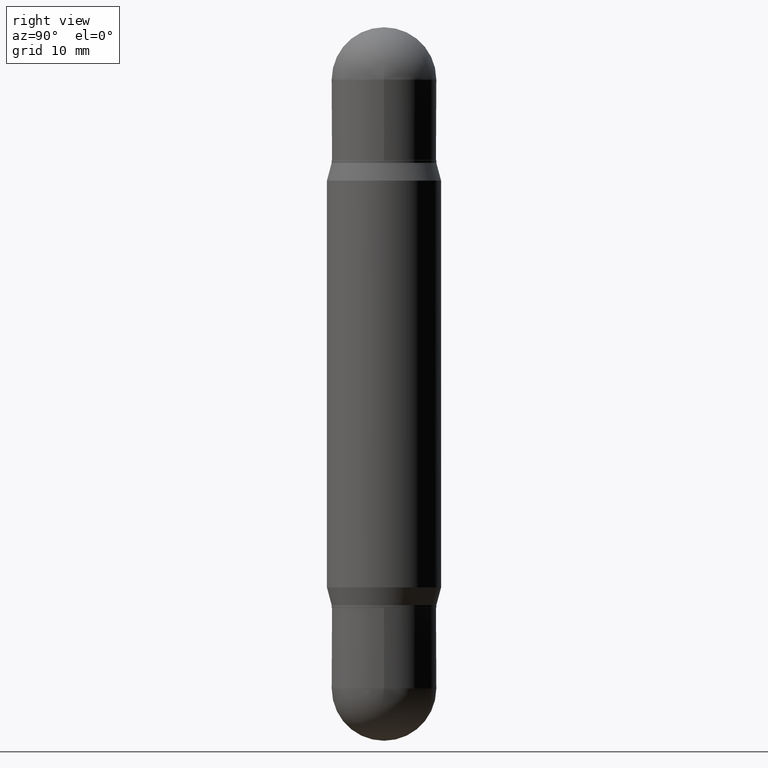
[diagram: clean part render]
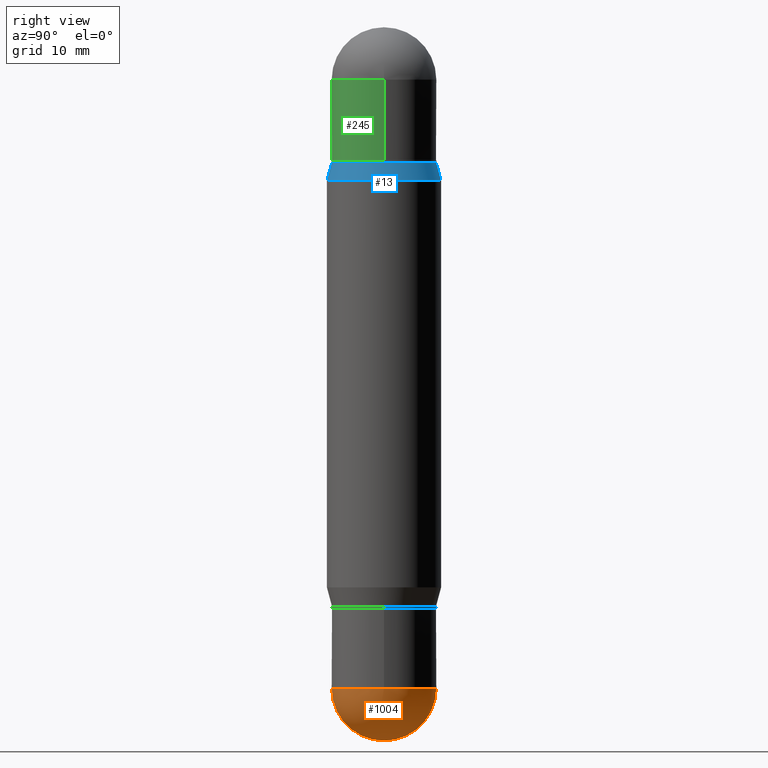
[diagram: same view with three faces highlighted in distinct colors, each labeled with its STEP entity id]
A machine part, right view with three faces highlighted in distinct colors.
Their STEP definitions:

[orange] entity #1004 — the highlighted spherical surface has radius 5.5004 mm.
#30 = DIRECTION ( 'NONE',  ( -2.445468806185136597E-29, 3.491481338843145583E-15, 1.000000000000000000 ) ) ;
#40 = EDGE_CURVE ( 'NONE', #493, #467, #559, .T. ) ;
#60 = DIRECTION ( 'NONE',  ( 1.000000000000000000, -6.982962677686270655E-15, 0.000000000000000000 ) ) ;
#101 = FACE_OUTER_BOUND ( 'NONE', #1044, .T. ) ;
#111 = AXIS2_PLACEMENT_3D ( 'NONE', #632, #30, #1063 ) ;
#139 = EDGE_CURVE ( 'NONE', #307, #1036, #273, .T. ) ;
#154 = DIRECTION ( 'NONE',  ( 1.000000000000000000, -6.982962677686265922E-15, 4.883557194083112340E-29 ) ) ;
#184 = CARTESIAN_POINT ( 'NONE',  ( 7.252127585071107106E-29, -1.026504139929409708E-14, -2.952799999999999869 ) ) ;
#204 = AXIS2_PLACEMENT_3D ( 'NONE', #965, #289, #977 ) ;
#229 = DIRECTION ( 'NONE',  ( -1.000000000000000000, 7.105427357601001070E-15, -4.926315508542082329E-29 ) ) ;
#273 = CIRCLE ( 'NONE', #993, 0.2165500000000003811 ) ;
#289 = DIRECTION ( 'NONE',  ( -1.000000000000000000, 6.982962677686265922E-15, -4.883557194083112340E-29 ) ) ;
#291 = ORIENTED_EDGE ( 'NONE', *, *, #610, .F. ) ;
#307 = VERTEX_POINT ( 'NONE', #184 ) ;
#432 = AXIS2_PLACEMENT_3D ( 'NONE', #825, #154, #573 ) ;
#459 = CARTESIAN_POINT ( 'NONE',  ( 0.2165500000000001035, -1.048151426624058891E-14, -2.736249999999999627 ) ) ;
#467 = VERTEX_POINT ( 'NONE', #895 ) ;
#484 = DIRECTION ( 'NONE',  ( -7.105427357601001070E-15, -1.000000000000000000, 0.000000000000000000 ) ) ;
#493 = VERTEX_POINT ( 'NONE', #459 ) ;
#524 = AXIS2_PLACEMENT_3D ( 'NONE', #738, #664, #60 ) ;
#559 = CIRCLE ( 'NONE', #111, 0.2165500000000001035 ) ;
#570 = EDGE_CURVE ( 'NONE', #307, #467, #673, .T. ) ;
#573 = DIRECTION ( 'NONE',  ( 6.982962677686265922E-15, 1.000000000000000000, 0.000000000000000000 ) ) ;
#582 = ORIENTED_EDGE ( 'NONE', *, *, #570, .T. ) ;
#610 = EDGE_CURVE ( 'NONE', #1036, #493, #1014, .T. ) ;
#612 = SPHERICAL_SURFACE ( 'NONE', #204, 0.2165500000000003811 ) ;
#632 = CARTESIAN_POINT ( 'NONE',  ( 6.691414020924079206E-29, -9.553565813409555750E-15, -2.736249999999999627 ) ) ;
#664 = DIRECTION ( 'NONE',  ( -2.445468806185136597E-29, 3.491481338843145583E-15, 1.000000000000000000 ) ) ;
#673 = CIRCLE ( 'NONE', #432, 0.2165500000000003811 ) ;
#677 = CARTESIAN_POINT ( 'NONE',  ( -1.538680294288431227E-15, -0.2165500000000098180, -2.736249999999999183 ) ) ;
#738 = CARTESIAN_POINT ( 'NONE',  ( 6.691414020924079206E-29, -9.553565813409555750E-15, -2.736249999999999627 ) ) ;
#825 = CARTESIAN_POINT ( 'NONE',  ( 6.713302002095624841E-29, -9.522220978585379288E-15, -2.736249999999999627 ) ) ;
#830 = CARTESIAN_POINT ( 'NONE',  ( 6.713302002095624841E-29, -9.522220978585379288E-15, -2.736249999999999627 ) ) ;
#895 = CARTESIAN_POINT ( 'NONE',  ( 1.512160567853029651E-15, 0.2165499999999906944, -2.736250000000000071 ) ) ;
#952 = ORIENTED_EDGE ( 'NONE', *, *, #40, .F. ) ;
#965 = CARTESIAN_POINT ( 'NONE',  ( 6.713302002095624841E-29, -9.522220978585379288E-15, -2.736249999999999627 ) ) ;
#977 = DIRECTION ( 'NONE',  ( 6.982962677686265922E-15, 1.000000000000000000, -2.523064413451173785E-15 ) ) ;
#993 = AXIS2_PLACEMENT_3D ( 'NONE', #830, #229, #484 ) ;
#1004 = ADVANCED_FACE ( 'NONE', ( #101 ), #612, .T. ) ;
#1014 = CIRCLE ( 'NONE', #524, 0.2165500000000001035 ) ;
#1036 = VERTEX_POINT ( 'NONE', #677 ) ;
#1044 = EDGE_LOOP ( 'NONE', ( #1097, #582, #952, #291 ) ) ;
#1063 = DIRECTION ( 'NONE',  ( 1.000000000000000000, -6.982962677686270655E-15, 0.000000000000000000 ) ) ;
#1097 = ORIENTED_EDGE ( 'NONE', *, *, #139, .F. ) ;

[blue] entity #13 — the highlighted conical surface has half-angle 15 deg.
#13 = ADVANCED_FACE ( 'NONE', ( #456 ), #957, .T. ) ;
#54 = CARTESIAN_POINT ( 'NONE',  ( 1.620449627073692271E-15, 0.2361999999999977728, -0.6345347983687291693 ) ) ;
#68 = DIRECTION ( 'NONE',  ( -1.807323732225338422E-15, -0.2588190451025260685, -0.9659258262890667579 ) ) ;
#114 = AXIS2_PLACEMENT_3D ( 'NONE', #1018, #344, #695 ) ;
#167 = EDGE_CURVE ( 'NONE', #599, #576, #1082, .T. ) ;
#223 = DIRECTION ( 'NONE',  ( -6.982962677686265133E-15, -1.000000000000000000, 3.469213568495369673E-15 ) ) ;
#231 = DIRECTION ( 'NONE',  ( 2.443443055007287713E-29, 3.476713475992551705E-15, 1.000000000000000000 ) ) ;
#263 = ORIENTED_EDGE ( 'NONE', *, *, #815, .T. ) ;
#297 = AXIS2_PLACEMENT_3D ( 'NONE', #323, #231, #223 ) ;
#302 = CARTESIAN_POINT ( 'NONE',  ( 5.843738410355426328E-29, -1.977217898530302232E-15, -0.5612000000000005873 ) ) ;
#323 = CARTESIAN_POINT ( 'NONE',  ( 5.843738410355426328E-29, -1.977217898530302232E-15, -0.5612000000000005873 ) ) ;
#344 = DIRECTION ( 'NONE',  ( 2.443443055007287713E-29, 3.476713475992551705E-15, 1.000000000000000000 ) ) ;
#395 = DIRECTION ( 'NONE',  ( 1.775627540710973583E-15, 0.2588190451025194627, -0.9659258262890685343 ) ) ;
#402 = CARTESIAN_POINT ( 'NONE',  ( 1.485640841417483516E-15, 0.2165499999999980218, -0.5612000000000013644 ) ) ;
#446 = DIRECTION ( 'NONE',  ( -2.443443055007287713E-29, -3.476713475992551705E-15, -1.000000000000000000 ) ) ;
#456 = FACE_OUTER_BOUND ( 'NONE', #478, .T. ) ;
#478 = EDGE_LOOP ( 'NONE', ( #557, #638, #597, #263 ) ) ;
#502 = VECTOR ( 'NONE', #395, 39.37007874015748143 ) ;
#557 = ORIENTED_EDGE ( 'NONE', *, *, #167, .F. ) ;
#576 = VERTEX_POINT ( 'NONE', #54 ) ;
#593 = VERTEX_POINT ( 'NONE', #1098 ) ;
#597 = ORIENTED_EDGE ( 'NONE', *, *, #808, .T. ) ;
#599 = VERTEX_POINT ( 'NONE', #743 ) ;
#600 = CIRCLE ( 'NONE', #114, 0.2361999999999999933 ) ;
#634 = EDGE_CURVE ( 'NONE', #896, #599, #982, .T. ) ;
#638 = ORIENTED_EDGE ( 'NONE', *, *, #634, .F. ) ;
#695 = DIRECTION ( 'NONE',  ( -6.982962677686265922E-15, -1.000000000000000000, 3.469747663417777397E-15 ) ) ;
#743 = CARTESIAN_POINT ( 'NONE',  ( 1.485640841417483714E-15, 0.2165499999999980218, -0.5612000000000013644 ) ) ;
#802 = DIRECTION ( 'NONE',  ( -6.982962677686265133E-15, -1.000000000000000000, 3.469213568495369673E-15 ) ) ;
#808 = EDGE_CURVE ( 'NONE', #896, #593, #843, .T. ) ;
#815 = EDGE_CURVE ( 'NONE', #593, #576, #600, .T. ) ;
#843 = LINE ( 'NONE', #1104, #938 ) ;
#896 = VERTEX_POINT ( 'NONE', #904 ) ;
#904 = CARTESIAN_POINT ( 'NONE',  ( -1.512160567852902447E-15, -0.2165500000000019909, -0.5611999999999998101 ) ) ;
#935 = AXIS2_PLACEMENT_3D ( 'NONE', #302, #446, #802 ) ;
#938 = VECTOR ( 'NONE', #68, 39.37007874015748854 ) ;
#957 = CONICAL_SURFACE ( 'NONE', #935, 0.2165500000000000203, 0.2617993877991515173 ) ;
#982 = CIRCLE ( 'NONE', #297, 0.2165500000000000203 ) ;
#1018 = CARTESIAN_POINT ( 'NONE',  ( 5.664549006590998682E-29, -2.232181980278054097E-15, -0.6345347983687283921 ) ) ;
#1082 = LINE ( 'NONE', #402, #502 ) ;
#1098 = CARTESIAN_POINT ( 'NONE',  ( -1.649375784469439136E-15, -0.2362000000000022137, -0.6345347983687275040 ) ) ;
#1104 = CARTESIAN_POINT ( 'NONE',  ( -1.512160567852902447E-15, -0.2165500000000019909, -0.5611999999999998101 ) ) ;

[green] entity #245 — the highlighted cylindrical surface (partial cylindrical patch) has radius 5.5004 mm, axis along (-0, -0, -1).
#6 = CIRCLE ( 'NONE', #601, 0.2165500000000000758 ) ;
#49 = VERTEX_POINT ( 'NONE', #372 ) ;
#75 = DIRECTION ( 'NONE',  ( 2.445468806185136597E-29, 3.479614466977828254E-15, 1.000000000000000000 ) ) ;
#76 = VECTOR ( 'NONE', #872, 39.37007874015748143 ) ;
#80 = DIRECTION ( 'NONE',  ( 2.445468806185136597E-29, 3.479614466977828254E-15, 1.000000000000000000 ) ) ;
#97 = EDGE_CURVE ( 'NONE', #951, #49, #127, .T. ) ;
#102 = EDGE_LOOP ( 'NONE', ( #412, #703, #209, #555, #914 ) ) ;
#126 = VERTEX_POINT ( 'NONE', #492 ) ;
#127 = CIRCLE ( 'NONE', #979, 0.2165500000000001035 ) ;
#132 = AXIS2_PLACEMENT_3D ( 'NONE', #417, #80, #1054 ) ;
#165 = DIRECTION ( 'NONE',  ( 1.000000000000000000, -6.982962677686270655E-15, 0.000000000000000000 ) ) ;
#209 = ORIENTED_EDGE ( 'NONE', *, *, #941, .T. ) ;
#222 = VECTOR ( 'NONE', #562, 39.37007874015748143 ) ;
#224 = CARTESIAN_POINT ( 'NONE',  ( 6.691414020924079206E-29, -7.710307624460063053E-16, -0.2165500000000001868 ) ) ;
#245 = ADVANCED_FACE ( 'NONE', ( #248 ), #936, .T. ) ;
#248 = FACE_OUTER_BOUND ( 'NONE', #102, .T. ) ;
#276 = LINE ( 'NONE', #371, #76 ) ;
#280 = VERTEX_POINT ( 'NONE', #341 ) ;
#298 = VERTEX_POINT ( 'NONE', #696 ) ;
#341 = CARTESIAN_POINT ( 'NONE',  ( -0.2165500000000000758, 1.323835882843561036E-16, -0.5512000000000001343 ) ) ;
#346 = CIRCLE ( 'NONE', #132, 0.2165500000000001035 ) ;
#371 = CARTESIAN_POINT ( 'NONE',  ( -0.2165500000000001035, -8.806485006296660292E-15, -2.952799999999999869 ) ) ;
#372 = CARTESIAN_POINT ( 'NONE',  ( -1.485640841417359468E-15, -0.2165500000000009917, -0.2165499999999994374 ) ) ;
#401 = CARTESIAN_POINT ( 'NONE',  ( -0.2165500000000001035, 1.323835882843576813E-16, -0.2165500000000001868 ) ) ;
#412 = ORIENTED_EDGE ( 'NONE', *, *, #97, .F. ) ;
#417 = CARTESIAN_POINT ( 'NONE',  ( 6.691414020924079206E-29, -7.710307624460063053E-16, -0.2165500000000001868 ) ) ;
#422 = DIRECTION ( 'NONE',  ( 1.000000000000000000, -6.982962677686266711E-15, 0.000000000000000000 ) ) ;
#427 = DIRECTION ( 'NONE',  ( -2.445468806185136597E-29, -3.479614466977828254E-15, -1.000000000000000000 ) ) ;
#469 = LINE ( 'NONE', #1066, #222 ) ;
#492 = CARTESIAN_POINT ( 'NONE',  ( 0.2165500000000001035, -2.865417820986029909E-15, -0.2165500000000001868 ) ) ;
#555 = ORIENTED_EDGE ( 'NONE', *, *, #891, .F. ) ;
#562 = DIRECTION ( 'NONE',  ( -2.445468806185136877E-29, -3.479614466977828648E-15, -1.000000000000000000 ) ) ;
#588 = DIRECTION ( 'NONE',  ( 1.000000000000000000, -6.982962677686265922E-15, 0.000000000000000000 ) ) ;
#601 = AXIS2_PLACEMENT_3D ( 'NONE', #844, #75, #422 ) ;
#669 = DIRECTION ( 'NONE',  ( 2.445468806185136597E-29, 3.479614466977828254E-15, 1.000000000000000000 ) ) ;
#696 = CARTESIAN_POINT ( 'NONE',  ( 0.2165500000000000758, -3.447644311673096437E-15, -0.5512000000000001343 ) ) ;
#703 = ORIENTED_EDGE ( 'NONE', *, *, #1002, .T. ) ;
#728 = AXIS2_PLACEMENT_3D ( 'NONE', #765, #427, #165 ) ;
#765 = CARTESIAN_POINT ( 'NONE',  ( 0.000000000000000000, -1.029212584771408642E-14, -2.952799999999999869 ) ) ;
#844 = CARTESIAN_POINT ( 'NONE',  ( 5.873037884934223228E-29, -1.935483743820134825E-15, -0.5512000000000001343 ) ) ;
#872 = DIRECTION ( 'NONE',  ( -2.445468806185136877E-29, -3.479614466977828648E-15, -1.000000000000000000 ) ) ;
#891 = EDGE_CURVE ( 'NONE', #126, #298, #469, .T. ) ;
#914 = ORIENTED_EDGE ( 'NONE', *, *, #1037, .F. ) ;
#936 = CYLINDRICAL_SURFACE ( 'NONE', #728, 0.2165500000000001035 ) ;
#941 = EDGE_CURVE ( 'NONE', #280, #298, #6, .T. ) ;
#951 = VERTEX_POINT ( 'NONE', #401 ) ;
#979 = AXIS2_PLACEMENT_3D ( 'NONE', #224, #669, #588 ) ;
#1002 = EDGE_CURVE ( 'NONE', #951, #280, #276, .T. ) ;
#1037 = EDGE_CURVE ( 'NONE', #49, #126, #346, .T. ) ;
#1054 = DIRECTION ( 'NONE',  ( 1.000000000000000000, -6.982962677686265922E-15, 0.000000000000000000 ) ) ;
#1066 = CARTESIAN_POINT ( 'NONE',  ( 0.2165500000000001035, -1.180428641556704882E-14, -2.952799999999999869 ) ) ;